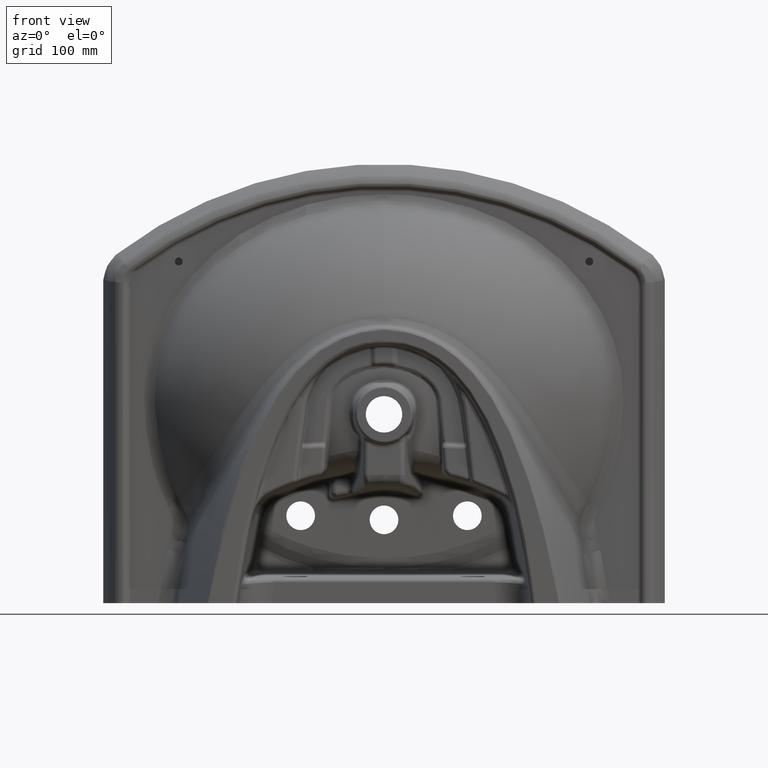
[diagram: clean part render]
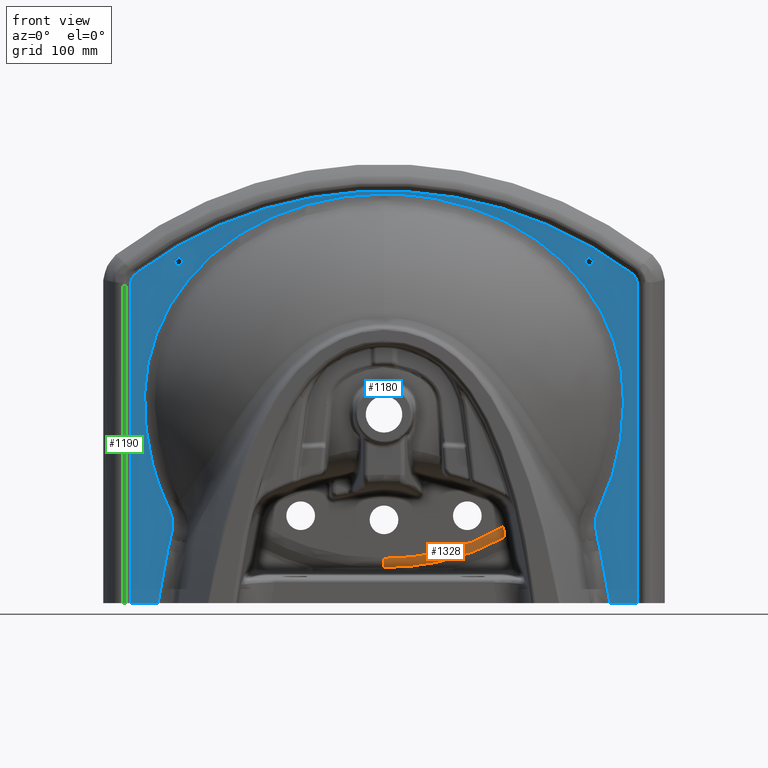
[diagram: same view with three faces highlighted in distinct colors, each labeled with its STEP entity id]
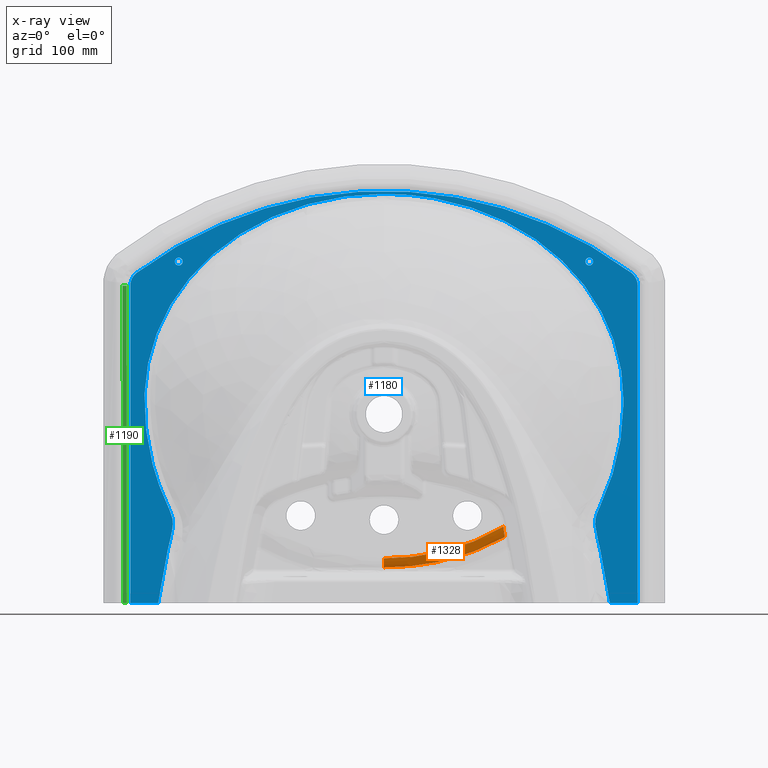
[diagram: x-ray of the same camera — body ghosted, the three highlighted faces saturated]
A machine part, front view with three faces highlighted in distinct colors.
The next image is the same camera in x-ray (body ghosted, the three faces saturated) — at least one of them is partly hidden behind the body in this view.
Their STEP definitions:

[orange] entity #1328 — the highlighted face is a freeform B-spline surface patch.
#326=CIRCLE('',#7452,25.);
#990=(
BOUNDED_SURFACE()
B_SPLINE_SURFACE(3,3,((#27801,#27802,#27803,#27804,#27805,#27806,#27807,
#27808,#27809),(#27810,#27811,#27812,#27813,#27814,#27815,#27816,#27817,
#27818),(#27819,#27820,#27821,#27822,#27823,#27824,#27825,#27826,#27827),
(#27828,#27829,#27830,#27831,#27832,#27833,#27834,#27835,#27836)),
 .UNSPECIFIED.,.F.,.F.,.F.)
B_SPLINE_SURFACE_WITH_KNOTS((4,4),(4,1,1,1,1,1,4),(0.,1.),(0.,0.103686715073332,
0.270455744592046,0.445080629346133,0.627123881743277,0.815776843584759,
1.),.UNSPECIFIED.)
GEOMETRIC_REPRESENTATION_ITEM()
RATIONAL_B_SPLINE_SURFACE(((1.015151605023,1.015151605023,1.015151605023,
1.015151605023,1.015151605023,1.015151605023,1.015151605023,1.015151605023,
1.015151605023),(0.9949494649924,0.9949494649924,0.9949494649924,0.9949494649924,
0.9949494649924,0.9949494649924,0.9949494649924,0.9949494649924,0.9949494649924),
(0.9949494649924,0.9949494649924,0.9949494649924,0.9949494649924,0.9949494649924,
0.9949494649924,0.9949494649924,0.9949494649924,0.9949494649924),(1.015151605023,
1.015151605023,1.015151605023,1.015151605023,1.015151605023,1.015151605023,
1.015151605023,1.015151605023,1.015151605023)))
REPRESENTATION_ITEM('')
SURFACE()
);
#1328=ADVANCED_FACE('',(#1858),#990,.T.);
#1858=FACE_OUTER_BOUND('',#2334,.T.);
#2334=EDGE_LOOP('',(#3798,#3799,#3800,#3801));
#3798=ORIENTED_EDGE('',*,*,#5844,.T.);
#3799=ORIENTED_EDGE('',*,*,#6184,.F.);
#3800=ORIENTED_EDGE('',*,*,#6185,.F.);
#3801=ORIENTED_EDGE('',*,*,#6186,.F.);
#5074=VERTEX_POINT('',#17924);
#5075=VERTEX_POINT('',#17934);
#5272=VERTEX_POINT('',#27069);
#5276=VERTEX_POINT('',#27796);
#5844=EDGE_CURVE('',#5075,#5074,#6822,.T.);
#6184=EDGE_CURVE('',#5272,#5074,#326,.T.);
#6185=EDGE_CURVE('',#5276,#5272,#7032,.T.);
#6186=EDGE_CURVE('',#5075,#5276,#7033,.T.);
#6822=B_SPLINE_CURVE_WITH_KNOTS('',3,(#17925,#17926,#17927,#17928,#17929,
#17930,#17931,#17932,#17933),.UNSPECIFIED.,.F.,.F.,(4,1,1,1,1,1,4),(0.,
0.1666666666667,0.3333333333333,0.5,0.6666666666667,0.8333333333333,1.),
 .UNSPECIFIED.);
#7032=B_SPLINE_CURVE_WITH_KNOTS('',3,(#27711,#27712,#27713,#27714,#27715,
#27716,#27717,#27718,#27719,#27720,#27721,#27722,#27723,#27724,#27725,#27726,
#27727,#27728,#27729,#27730,#27731,#27732,#27733,#27734,#27735,#27736,#27737,
#27738,#27739,#27740,#27741,#27742,#27743,#27744,#27745,#27746,#27747,#27748,
#27749,#27750,#27751,#27752,#27753,#27754,#27755,#27756,#27757,#27758,#27759,
#27760,#27761,#27762,#27763,#27764,#27765,#27766,#27767,#27768,#27769,#27770,
#27771,#27772,#27773,#27774,#27775,#27776,#27777,#27778,#27779,#27780,#27781,
#27782,#27783,#27784,#27785,#27786,#27787,#27788,#27789,#27790,#27791,#27792,
#27793,#27794,#27795),.UNSPECIFIED.,.F.,.F.,(4,2,2,2,1,1,2,2,2,2,1,1,1,
2,2,2,2,2,1,2,2,2,2,2,1,1,2,2,2,2,1,1,2,2,2,2,1,2,2,2,2,2,2,2,1,1,2,2,4),
(0.,0.125000000000015,0.187500000000023,0.218750000000027,0.234375000000029,
0.24218750000003,0.24609375000003,0.250000000000031,0.312500000000039,0.343750000000043,
0.359375000000045,0.367187500000047,0.371093750000047,0.373046875000047,
0.375000000000047,0.437500000000043,0.468750000000041,0.48437500000004,
0.492187500000039,0.496093750000039,0.500000000000039,0.562500000000032,
0.593750000000029,0.609375000000028,0.617187500000027,0.621093750000027,
0.623046875000027,0.625000000000026,0.687500000000023,0.718750000000022,
0.734375000000021,0.742187500000021,0.74609375000002,0.75000000000002,0.781250000000018,
0.796875000000017,0.804687500000016,0.808593750000016,0.812500000000015,
0.843750000000013,0.859375000000012,0.87500000000001,0.906250000000008,
0.921875000000006,0.929687500000005,0.933593750000005,0.935546875000005,
0.937500000000005,1.),.UNSPECIFIED.);
#7033=B_SPLINE_CURVE_WITH_KNOTS('',3,(#27797,#27798,#27799,#27800),
 .UNSPECIFIED.,.F.,.F.,(4,4),(0.,1.),.UNSPECIFIED.);
#7452=AXIS2_PLACEMENT_3D('',#27674,#8000,#8001);
#8000=DIRECTION('',(-0.999999999982946,-1.52880922051907E-007,5.83828686946527E-006));
#8001=DIRECTION('',(-2.60530900881261E-006,-0.883002808706644,-0.469367702137024));
#17924=CARTESIAN_POINT('',(0.0001063713125136,118.8876440453,-175.431765693));
#17925=CARTESIAN_POINT('',(145.2903909362,117.8783610399,-136.8884715038));
#17926=CARTESIAN_POINT('',(138.9234523488,117.9794130101,-140.7474905539));
#17927=CARTESIAN_POINT('',(125.587769086,118.1698382151,-148.0200206819));
#17928=CARTESIAN_POINT('',(103.5766519904,118.4180229777,-157.4976194798));
#17929=CARTESIAN_POINT('',(79.80238428341,118.620692403,-165.2373048068));
#17930=CARTESIAN_POINT('',(54.44624703276,118.7720653268,-171.0179895319));
#17931=CARTESIAN_POINT('',(27.78675664891,118.8660084796,-174.605537624));
#17932=CARTESIAN_POINT('',(9.380939439283,118.8876415586,-175.4316707317));
#17933=CARTESIAN_POINT('',(8.388394293031E-005,118.8876440194,-175.4317647058));
#17934=CARTESIAN_POINT('',(145.2903909362,117.8783610399,-136.8884715038));
#27069=CARTESIAN_POINT('',(4.123863431287E-005,121.8040067413,-186.5115264907));
#27674=CARTESIAN_POINT('',(0.0001063713595332,143.8790769589,-174.7773339372));
#27711=CARTESIAN_POINT('',(146.965454815132,121.149140308558,-149.486050100031));
#27712=CARTESIAN_POINT('',(142.41114148173,121.200798714778,-152.08556066915));
#27713=CARTESIAN_POINT('',(137.499917915369,121.251791678119,-154.700870820983));
#27714=CARTESIAN_POINT('',(129.577482409654,121.325843863535,-158.566856166605));
#27715=CARTESIAN_POINT('',(126.84409609042,121.350118981731,-159.845960862128));
#27716=CARTESIAN_POINT('',(122.602763650907,121.385713557062,-161.739765397421));
#27717=CARTESIAN_POINT('',(121.165449355866,121.397441832574,-162.366887237675));
#27718=CARTESIAN_POINT('',(118.973926291661,121.41480160068,-163.299998684215));
#27719=CARTESIAN_POINT('',(117.869277436814,121.42342329994,-163.764661200368));
#27720=CARTESIAN_POINT('',(116.56492012992,121.43337379732,-164.303154711399));
#27721=CARTESIAN_POINT('',(116.002562271446,121.437614426191,-164.533131130731));
#27722=CARTESIAN_POINT('',(115.626912619449,121.440436130012,-164.686265917211));
#27723=CARTESIAN_POINT('',(115.410306483853,121.442056027337,-164.774249410346));
#27724=CARTESIAN_POINT('',(112.687579934186,121.462348832233,-165.877128683263));
#27725=CARTESIAN_POINT('',(109.96578214865,121.48159031898,-166.934586315201));
#27726=CARTESIAN_POINT('',(105.638758127081,121.51028158571,-168.530021079252));
#27727=CARTESIAN_POINT('',(104.155701354155,121.519816213407,-169.063354721418));
#27728=CARTESIAN_POINT('',(101.869426485357,121.534020383702,-169.862976634506));
#27729=CARTESIAN_POINT('',(100.710867469064,121.541097960893,-170.26269121291));
#27730=CARTESIAN_POINT('',(99.3321025277728,121.549299709372,-170.728255835753));
#27731=CARTESIAN_POINT('',(98.6359270677042,121.553385106106,-170.960769501471));
#27732=CARTESIAN_POINT('',(98.3361089530103,121.555132498747,-171.060352433705));
#27733=CARTESIAN_POINT('',(98.1359062156746,121.556296631646,-171.126725520728));
#27734=CARTESIAN_POINT('',(97.9911666005761,121.557135728247,-171.174594813235));
#27735=CARTESIAN_POINT('',(96.1448430398187,121.567822223216,-171.78443593927));
#27736=CARTESIAN_POINT('',(93.7426667933762,121.581270548582,-172.560209874948));
#27737=CARTESIAN_POINT('',(89.2006900702945,121.604706240834,-173.929281692886));
#27738=CARTESIAN_POINT('',(87.5301682578214,121.613054280598,-174.41950652077));
#27739=CARTESIAN_POINT('',(84.7863280089107,121.62613594716,-175.193445207259));
#27740=CARTESIAN_POINT('',(83.8320350740525,121.630589231007,-175.457835697921));
#27741=CARTESIAN_POINT('',(82.3406466035019,121.637372635753,-175.862310701708));
#27742=CARTESIAN_POINT('',(81.579964934122,121.640790153908,-176.066518428577));
#27743=CARTESIAN_POINT('',(80.7967204067078,121.644239220842,-176.273338828962));
#27744=CARTESIAN_POINT('',(80.269534295969,121.646544777272,-176.411760321905));
#27745=CARTESIAN_POINT('',(79.9712942674019,121.647839243589,-176.489583888126));
#27746=CARTESIAN_POINT('',(75.9510445719576,121.665178230458,-177.533214655589));
#27747=CARTESIAN_POINT('',(72.4691693327439,121.678713520303,-178.358159910317));
#27748=CARTESIAN_POINT('',(67.715287966209,121.695832272921,-179.412280280008));
#27749=CARTESIAN_POINT('',(66.2087559311461,121.701006634213,-179.732995713471));
#27750=CARTESIAN_POINT('',(64.0676300344318,121.708082058289,-180.173699870227));
#27751=CARTESIAN_POINT('',(63.3736970576163,121.710326087244,-180.3138664761));
#27752=CARTESIAN_POINT('',(62.3626265558754,121.71353355114,-180.514657309326));
#27753=CARTESIAN_POINT('',(61.8645482911617,121.715097628757,-180.612687343734));
#27754=CARTESIAN_POINT('',(61.296540300454,121.716855752251,-180.723050515964));
#27755=CARTESIAN_POINT('',(61.055915311627,121.71759524429,-180.769504730351));
#27756=CARTESIAN_POINT('',(60.8961228098346,121.718085162161,-180.800288128162));
#27757=CARTESIAN_POINT('',(60.8491032713054,121.718229211808,-180.809340056164));
#27758=CARTESIAN_POINT('',(57.1584974749809,121.729491085919,-181.517293002159));
#27759=CARTESIAN_POINT('',(53.7249863500128,121.738734160868,-182.109971920482));
#27760=CARTESIAN_POINT('',(48.8000979074597,121.750553773829,-182.883151184625));
#27761=CARTESIAN_POINT('',(47.1960112162842,121.75415270033,-183.121544040906));
#27762=CARTESIAN_POINT('',(44.8469630605167,121.759097083152,-183.453003686808));
#27763=CARTESIAN_POINT('',(43.6867077085899,121.761455723144,-183.612198462214));
#27764=CARTESIAN_POINT('',(42.3581971907398,121.764020836033,-183.787089975661));
#27765=CARTESIAN_POINT('',(41.7942336802955,121.765081460898,-183.859784263313));
#27766=CARTESIAN_POINT('',(41.4194592496019,121.765780084363,-183.90775199895));
#27767=CARTESIAN_POINT('',(41.2773233501175,121.766043406513,-183.925854441452));
#27768=CARTESIAN_POINT('',(39.199800736797,121.769847550731,-184.187988976636));
#27769=CARTESIAN_POINT('',(37.4365872360728,121.772818465886,-184.394034800558));
#27770=CARTESIAN_POINT('',(34.918311671788,121.776803544806,-184.669271246472));
#27771=CARTESIAN_POINT('',(34.0999741517873,121.778053263887,-184.7553709158));
#27772=CARTESIAN_POINT('',(32.9042402038041,121.779827058405,-184.876814692997));
#27773=CARTESIAN_POINT('',(32.3143160579177,121.780688749857,-184.93560949207));
#27774=CARTESIAN_POINT('',(31.7363303439772,121.781515761931,-184.99165078824));
#27775=CARTESIAN_POINT('',(31.3536620612504,121.782059737949,-185.028414591209));
#27776=CARTESIAN_POINT('',(31.1937527948163,121.782285804827,-185.043659831213));
#27777=CARTESIAN_POINT('',(29.2247826706158,121.785049087684,-185.229333194367));
#27778=CARTESIAN_POINT('',(27.4990158231304,121.787331396092,-185.377810367629));
#27779=CARTESIAN_POINT('',(24.947527129373,121.790532339956,-185.577673765645));
#27780=CARTESIAN_POINT('',(24.1032238352209,121.791562242262,-185.640485417268));
#27781=CARTESIAN_POINT('',(22.4270818529422,121.793554366953,-185.758813499582));
#27782=CARTESIAN_POINT('',(21.5432213412494,121.794575295458,-185.817608364787));
#27783=CARTESIAN_POINT('',(19.2225783976055,121.797194106819,-185.963856224094));
#27784=CARTESIAN_POINT('',(17.5885414757034,121.798941735612,-186.055973200098));
#27785=CARTESIAN_POINT('',(15.0066784523742,121.801408512005,-186.180257873998));
#27786=CARTESIAN_POINT('',(14.1242570934083,121.802204790118,-186.219364844731));
#27787=CARTESIAN_POINT('',(12.7678853402831,121.803338713631,-186.273761328146));
#27788=CARTESIAN_POINT('',(12.0815146569881,121.803890532316,-186.299893008428));
#27789=CARTESIAN_POINT('',(11.2664182756765,121.804502902764,-186.328336419378));
#27790=CARTESIAN_POINT('',(10.9140197451858,121.804758074388,-186.340069196989));
#27791=CARTESIAN_POINT('',(10.678404762295,121.804926512195,-186.347787275886));
#27792=CARTESIAN_POINT('',(10.5253219331314,121.805034219528,-186.352701261906));
#27793=CARTESIAN_POINT('',(7.76796956029294,121.806954332745,-186.440063828035));
#27794=CARTESIAN_POINT('',(4.28868087884158,121.808948170154,-186.520807090704));
#27795=CARTESIAN_POINT('',(4.40772977219055E-005,121.808978853733,-186.520889004576));
#27796=CARTESIAN_POINT('',(146.965447437,121.149167594,-149.4860366314));
#27797=CARTESIAN_POINT('',(145.290468146476,117.878399194877,-136.88893551541));
#27798=CARTESIAN_POINT('',(146.012470543309,117.992474625526,-141.234276527531));
#27799=CARTESIAN_POINT('',(146.584903029324,119.123127366398,-145.589213737403));
#27800=CARTESIAN_POINT('',(146.965398054648,121.149021736063,-149.485640120729));
#27801=CARTESIAN_POINT('',(151.3893703728,121.0807701286,-146.8666361241));
#27802=CARTESIAN_POINT('',(146.6835343646,121.1554585551,-149.7188720608));
#27803=CARTESIAN_POINT('',(134.1673499934,121.3395974316,-156.7508520497));
#27804=CARTESIAN_POINT('',(112.7002725852,121.5967419075,-166.5708034006));
#27805=CARTESIAN_POINT('',(86.48129237342,121.8323464081,-175.5681762811));
#27806=CARTESIAN_POINT('',(58.41853158433,122.0071195749,-182.2424942477));
#27807=CARTESIAN_POINT('',(29.37089577574,122.1119365428,-186.2452927614));
#27808=CARTESIAN_POINT('',(9.709535968201,122.1346688456,-187.1134043816));
#27809=CARTESIAN_POINT('',(4.576458567586E-005,122.1346712152,-187.1134948717));
#27810=CARTESIAN_POINT('',(149.5027217542,119.0596543656,-143.806874566));
#27811=CARTESIAN_POINT('',(144.8653978721,119.133255284,-146.6175802439));
#27812=CARTESIAN_POINT('',(132.5279215747,119.3147689917,-153.5493090832));
#27813=CARTESIAN_POINT('',(111.3533337939,119.5684240117,-163.2360034863));
#27814=CARTESIAN_POINT('',(85.4702891264,119.801022412,-172.11857803));
#27815=CARTESIAN_POINT('',(57.75073655017,119.9736683381,-178.7116599517));
#27816=CARTESIAN_POINT('',(29.04291419519,120.0772685872,-182.667993849));
#27817=CARTESIAN_POINT('',(9.602326142239,120.0997504963,-183.5265433188));
#27818=CARTESIAN_POINT('',(2.388072555688E-005,120.0997528615,-183.5266336431));
#27819=CARTESIAN_POINT('',(147.4284280658,117.970502825,-140.4131225355));
#27820=CARTESIAN_POINT('',(142.8664304893,118.0429080724,-143.1781673771));
#27821=CARTESIAN_POINT('',(130.725436476,118.2215355135,-149.9996741408));
#27822=CARTESIAN_POINT('',(109.8724291857,118.471354018,-159.539857931));
#27823=CARTESIAN_POINT('',(84.35873203327,118.7006473329,-168.2962163561));
#27824=CARTESIAN_POINT('',(57.01652297651,118.8709544441,-174.7999825389));
#27825=CARTESIAN_POINT('',(28.68231174079,118.9732169602,-178.705230474));
#27826=CARTESIAN_POINT('',(9.484453283915,118.9954235716,-179.553266747));
#27827=CARTESIAN_POINT('',(-1.796916694062E-007,118.995425932,-179.5533568888));
#27828=CARTESIAN_POINT('',(145.2903284603,117.8783398595,-136.8879932781));
#27829=CARTESIAN_POINT('',(140.8059742501,117.9495126565,-139.605972742));
#27830=CARTESIAN_POINT('',(128.8675063767,118.1251650486,-146.3138669648));
#27831=CARTESIAN_POINT('',(108.3459714925,118.3710290252,-155.70303343));
#27832=CARTESIAN_POINT('',(83.21298309927,118.5969155893,-164.3292932898));
#27833=CARTESIAN_POINT('',(56.25972476565,118.7648119429,-170.7409963539));
#27834=CARTESIAN_POINT('',(28.31061704307,118.8656955769,-174.5935869066));
#27835=CARTESIAN_POINT('',(9.362954619917,118.8876184223,-175.4307865936));
#27836=CARTESIAN_POINT('',(-2.498021479043E-005,118.8876207778,-175.4308765474));

[blue] entity #1180 — the highlighted planar face has unit normal (0, -1, 0).
#231=FACE_BOUND('',#2177,.T.);
#232=FACE_BOUND('',#2178,.T.);
#233=FACE_BOUND('',#2179,.T.);
#283=CIRCLE('',#7361,4.75);
#284=CIRCLE('',#7363,504.9817006471);
#285=CIRCLE('',#7364,4.75);
#286=CIRCLE('',#7365,4.75);
#287=CIRCLE('',#7366,4.75);
#407=PLANE('',#7367);
#635=LINE('',#16349,#764);
#636=LINE('',#16496,#765);
#764=VECTOR('',#7782,1.);
#765=VECTOR('',#7783,1.);
#1180=ADVANCED_FACE('',(#231,#232,#233),#407,.T.);
#2177=EDGE_LOOP('',(#3047,#3048,#3049,#3050,#3051,#3052,#3053,#3054,#3055,
#3056,#3057,#3058,#3059,#3060,#3061,#3062,#3063));
#2178=EDGE_LOOP('',(#3064,#3065));
#2179=EDGE_LOOP('',(#3066,#3067));
#3047=ORIENTED_EDGE('',*,*,#5730,.T.);
#3048=ORIENTED_EDGE('',*,*,#5731,.T.);
#3049=ORIENTED_EDGE('',*,*,#5732,.T.);
#3050=ORIENTED_EDGE('',*,*,#5733,.T.);
#3051=ORIENTED_EDGE('',*,*,#5734,.F.);
#3052=ORIENTED_EDGE('',*,*,#5735,.F.);
#3053=ORIENTED_EDGE('',*,*,#5736,.F.);
#3054=ORIENTED_EDGE('',*,*,#5737,.F.);
#3055=ORIENTED_EDGE('',*,*,#5738,.F.);
#3056=ORIENTED_EDGE('',*,*,#5739,.F.);
#3057=ORIENTED_EDGE('',*,*,#5740,.F.);
#3058=ORIENTED_EDGE('',*,*,#5741,.F.);
#3059=ORIENTED_EDGE('',*,*,#5742,.F.);
#3060=ORIENTED_EDGE('',*,*,#5743,.F.);
#3061=ORIENTED_EDGE('',*,*,#5744,.F.);
#3062=ORIENTED_EDGE('',*,*,#5745,.F.);
#3063=ORIENTED_EDGE('',*,*,#5746,.T.);
#3064=ORIENTED_EDGE('',*,*,#5747,.F.);
#3065=ORIENTED_EDGE('',*,*,#5729,.F.);
#3066=ORIENTED_EDGE('',*,*,#5748,.F.);
#3067=ORIENTED_EDGE('',*,*,#5749,.F.);
#4976=VERTEX_POINT('',#16316);
#4977=VERTEX_POINT('',#16318);
#4978=VERTEX_POINT('',#16329);
#4979=VERTEX_POINT('',#16330);
#4980=VERTEX_POINT('',#16332);
#4981=VERTEX_POINT('',#16341);
#4982=VERTEX_POINT('',#16348);
#4983=VERTEX_POINT('',#16350);
#4984=VERTEX_POINT('',#16355);
#4985=VERTEX_POINT('',#16362);
#4986=VERTEX_POINT('',#16371);
#4987=VERTEX_POINT('',#16376);
#4988=VERTEX_POINT('',#16445);
#4989=VERTEX_POINT('',#16469);
#4990=VERTEX_POINT('',#16474);
#4991=VERTEX_POINT('',#16483);
#4992=VERTEX_POINT('',#16490);
#4993=VERTEX_POINT('',#16495);
#4994=VERTEX_POINT('',#16497);
#4995=VERTEX_POINT('',#16506);
#4996=VERTEX_POINT('',#16507);
#5729=EDGE_CURVE('',#4977,#4976,#283,.T.);
#5730=EDGE_CURVE('',#4978,#4979,#6750,.T.);
#5731=EDGE_CURVE('',#4979,#4980,#284,.T.);
#5732=EDGE_CURVE('',#4980,#4981,#6751,.T.);
#5733=EDGE_CURVE('',#4981,#4982,#6752,.T.);
#5734=EDGE_CURVE('',#4983,#4982,#635,.T.);
#5735=EDGE_CURVE('',#4984,#4983,#6753,.T.);
#5736=EDGE_CURVE('',#4985,#4984,#6754,.T.);
#5737=EDGE_CURVE('',#4986,#4985,#6755,.T.);
#5738=EDGE_CURVE('',#4987,#4986,#6756,.T.);
#5739=EDGE_CURVE('',#4988,#4987,#6757,.T.);
#5740=EDGE_CURVE('',#4989,#4988,#6758,.T.);
#5741=EDGE_CURVE('',#4990,#4989,#6759,.T.);
#5742=EDGE_CURVE('',#4991,#4990,#6760,.T.);
#5743=EDGE_CURVE('',#4992,#4991,#6761,.T.);
#5744=EDGE_CURVE('',#4993,#4992,#6762,.T.);
#5745=EDGE_CURVE('',#4994,#4993,#636,.T.);
#5746=EDGE_CURVE('',#4994,#4978,#6763,.T.);
#5747=EDGE_CURVE('',#4976,#4977,#285,.T.);
#5748=EDGE_CURVE('',#4995,#4996,#286,.T.);
#5749=EDGE_CURVE('',#4996,#4995,#287,.T.);
#6750=B_SPLINE_CURVE_WITH_KNOTS('',3,(#16321,#16322,#16323,#16324,#16325,
#16326,#16327,#16328),.UNSPECIFIED.,.F.,.F.,(4,1,1,1,1,4),(0.,0.2,0.4,0.6,
0.8,1.),.UNSPECIFIED.);
#6751=B_SPLINE_CURVE_WITH_KNOTS('',3,(#16333,#16334,#16335,#16336,#16337,
#16338,#16339,#16340),.UNSPECIFIED.,.F.,.F.,(4,1,1,1,1,4),(0.,0.2,0.4,0.6,
0.8,1.),.UNSPECIFIED.);
#6752=B_SPLINE_CURVE_WITH_KNOTS('',3,(#16342,#16343,#16344,#16345,#16346,
#16347),.UNSPECIFIED.,.F.,.F.,(4,1,1,4),(0.,0.3333333333333,0.6666666666667,
1.),.UNSPECIFIED.);
#6753=B_SPLINE_CURVE_WITH_KNOTS('',3,(#16351,#16352,#16353,#16354),
 .UNSPECIFIED.,.F.,.F.,(4,4),(0.,1.),.UNSPECIFIED.);
#6754=B_SPLINE_CURVE_WITH_KNOTS('',3,(#16356,#16357,#16358,#16359,#16360,
#16361),.UNSPECIFIED.,.F.,.F.,(4,1,1,4),(0.,0.3333333333333,0.6666666666667,
1.),.UNSPECIFIED.);
#6755=B_SPLINE_CURVE_WITH_KNOTS('',3,(#16363,#16364,#16365,#16366,#16367,
#16368,#16369,#16370),.UNSPECIFIED.,.F.,.F.,(4,1,1,1,1,4),(0.,0.25,0.375,
0.5,0.75,1.),.UNSPECIFIED.);
#6756=B_SPLINE_CURVE_WITH_KNOTS('',3,(#16372,#16373,#16374,#16375),
 .UNSPECIFIED.,.F.,.F.,(4,4),(0.,1.),.UNSPECIFIED.);
#6757=B_SPLINE_CURVE_WITH_KNOTS('',3,(#16377,#16378,#16379,#16380,#16381,
#16382,#16383,#16384,#16385,#16386,#16387,#16388,#16389,#16390,#16391,#16392,
#16393,#16394,#16395,#16396,#16397,#16398,#16399,#16400,#16401,#16402,#16403,
#16404,#16405,#16406,#16407,#16408,#16409,#16410,#16411,#16412,#16413,#16414,
#16415,#16416,#16417,#16418,#16419,#16420,#16421,#16422,#16423,#16424,#16425,
#16426,#16427,#16428,#16429,#16430,#16431,#16432,#16433,#16434,#16435,#16436,
#16437,#16438,#16439,#16440,#16441,#16442,#16443,#16444),.UNSPECIFIED.,
 .F.,.F.,(4,1,1,1,1,1,1,1,1,1,1,1,1,1,1,1,1,1,1,1,1,1,1,1,1,1,1,1,1,1,1,
1,1,1,1,1,1,1,1,1,1,1,1,1,1,1,1,1,1,1,1,1,1,1,1,1,1,1,1,1,1,1,1,1,1,4),
(0.,0.01865068622153,0.03717516774878,0.0556398112197,0.07398880938672,
0.09222000964436,0.1103125504805,0.1282493150287,0.1460400762138,0.1636879135775,
0.1812039953505,0.198583206482,0.2158069070234,0.2328513650007,0.2497097001378,
0.2663806832777,0.2828654921934,0.2991707780201,0.3152957636329,0.3312302206506,
0.3469580488075,0.3624971108673,0.3778596227437,0.3930433547888,0.4080580451863,
0.4228996115136,0.4375346639606,0.4519186600701,0.4661713652616,0.4803505639318,
0.4944027548033,0.5082876691076,0.5220918026172,0.535829229627,0.5494007525637,
0.5628255923447,0.5761452616428,0.5893733572095,0.6025307928021,0.6155874717215,
0.6285335437728,0.6414452264493,0.6543212798964,0.6671204648557,0.6798803034778,
0.6926703490658,0.7054850867941,0.7182556009044,0.7309816650824,0.7439731149907,
0.7577773636157,0.7731360462941,0.7898568208402,0.8064663079321,0.8227672361554,
0.839060096895,0.8552432479879,0.871431407395,0.8876000630152,0.9037324794466,
0.9198306080681,0.9358994579324,0.9519607428175,0.967987506183,0.9839756107842,
1.),.UNSPECIFIED.);
#6758=B_SPLINE_CURVE_WITH_KNOTS('',3,(#16446,#16447,#16448,#16449,#16450,
#16451,#16452,#16453,#16454,#16455,#16456,#16457,#16458,#16459,#16460,#16461,
#16462,#16463,#16464,#16465,#16466,#16467,#16468),.UNSPECIFIED.,.F.,.F.,
(4,1,1,1,1,1,1,1,1,1,1,1,1,1,1,1,1,1,1,1,4),(0.,0.05,0.1,0.15,0.2,0.25,
0.3,0.35,0.4,0.45,0.5,0.55,0.6,0.65,0.7,0.75,0.8,0.85,0.9,0.95,1.),
 .UNSPECIFIED.);
#6759=B_SPLINE_CURVE_WITH_KNOTS('',3,(#16470,#16471,#16472,#16473),
 .UNSPECIFIED.,.F.,.F.,(4,4),(0.,1.),.UNSPECIFIED.);
#6760=B_SPLINE_CURVE_WITH_KNOTS('',3,(#16475,#16476,#16477,#16478,#16479,
#16480,#16481,#16482),.UNSPECIFIED.,.F.,.F.,(4,1,1,1,1,4),(0.,0.25,0.5,
0.625,0.75,1.),.UNSPECIFIED.);
#6761=B_SPLINE_CURVE_WITH_KNOTS('',3,(#16484,#16485,#16486,#16487,#16488,
#16489),.UNSPECIFIED.,.F.,.F.,(4,1,1,4),(0.,0.3333333333333,0.6666666666667,
1.),.UNSPECIFIED.);
#6762=B_SPLINE_CURVE_WITH_KNOTS('',3,(#16491,#16492,#16493,#16494),
 .UNSPECIFIED.,.F.,.F.,(4,4),(0.,1.),.UNSPECIFIED.);
#6763=B_SPLINE_CURVE_WITH_KNOTS('',3,(#16498,#16499,#16500,#16501,#16502,
#16503),.UNSPECIFIED.,.F.,.F.,(4,1,1,4),(0.,0.3333333333333,0.6666666666667,
1.),.UNSPECIFIED.);
#7361=AXIS2_PLACEMENT_3D('',#16319,#7776,#7777);
#7363=AXIS2_PLACEMENT_3D('',#16331,#7780,#7781);
#7364=AXIS2_PLACEMENT_3D('',#16504,#7784,#7785);
#7365=AXIS2_PLACEMENT_3D('',#16505,#7786,#7787);
#7366=AXIS2_PLACEMENT_3D('',#16508,#7788,#7789);
#7367=AXIS2_PLACEMENT_3D('',#16509,#7790,#7791);
#7776=DIRECTION('',(0.,-1.,0.));
#7777=DIRECTION('',(-0.999999999999995,0.,0.));
#7780=DIRECTION('',(0.,-1.,0.));
#7781=DIRECTION('',(0.596131938660887,0.,0.802886487436682));
#7782=DIRECTION('',(-1.,0.,4.282281746451E-011));
#7783=DIRECTION('',(-1.,0.,-4.191636480791E-011));
#7784=DIRECTION('',(0.,-1.,0.));
#7785=DIRECTION('',(1.,0.,0.));
#7786=DIRECTION('',(0.,-1.,0.));
#7787=DIRECTION('',(0.999999999999995,0.,0.));
#7788=DIRECTION('',(0.,-1.,0.));
#7789=DIRECTION('',(-1.,0.,0.));
#7790=DIRECTION('',(0.,-1.,0.));
#7791=DIRECTION('',(1.,0.,0.));
#16316=CARTESIAN_POINT('',(-245.25,105.,186.));
#16318=CARTESIAN_POINT('',(-254.75,105.,186.));
#16319=CARTESIAN_POINT('',(-250.,105.,186.));
#16321=CARTESIAN_POINT('',(309.0771565585,105.,156.5291467193));
#16322=CARTESIAN_POINT('',(309.0723264491,105.,157.810337203));
#16323=CARTESIAN_POINT('',(308.8294668185,105.,160.2975573306));
#16324=CARTESIAN_POINT('',(307.8049055535,105.,163.8355205014));
#16325=CARTESIAN_POINT('',(306.1621842091,105.,167.0859694221));
#16326=CARTESIAN_POINT('',(303.9222776408,105.,170.0083938682));
#16327=CARTESIAN_POINT('',(302.0642774672,105.,171.6790870103));
#16328=CARTESIAN_POINT('',(301.0358434099,105.,172.442878618));
#16329=CARTESIAN_POINT('',(309.0771565585,105.,156.5291467193));
#16330=CARTESIAN_POINT('',(301.0358434099,105.,172.442878618));
#16331=CARTESIAN_POINT('',(0.,105.,-233.));
#16332=CARTESIAN_POINT('',(-301.0357166618,105.,172.4429864757));
#16333=CARTESIAN_POINT('',(-301.0358279065,105.,172.4428898198));
#16334=CARTESIAN_POINT('',(-302.0642669653,105.,171.6790974631));
#16335=CARTESIAN_POINT('',(-303.9222867289,105.,170.008383251));
#16336=CARTESIAN_POINT('',(-306.1621790981,105.,167.0859746213));
#16337=CARTESIAN_POINT('',(-307.8049119855,105.,163.8355160213));
#16338=CARTESIAN_POINT('',(-308.82947877,105.,160.2974806106));
#16339=CARTESIAN_POINT('',(-309.0723220999,105.,157.8103717341));
#16340=CARTESIAN_POINT('',(-309.0771558922,105.,156.5292074865));
#16341=CARTESIAN_POINT('',(-309.0771558922,105.,156.5292074865));
#16342=CARTESIAN_POINT('',(-309.0771558922,105.,156.5292074865));
#16343=CARTESIAN_POINT('',(-309.2475120566,105.,109.8511021462));
#16344=CARTESIAN_POINT('',(-309.5984766833,105.,18.97600793647));
#16345=CARTESIAN_POINT('',(-309.7148916906,105.,-110.3859361039));
#16346=CARTESIAN_POINT('',(-309.3214274464,105.,-191.0104127191));
#16347=CARTESIAN_POINT('',(-308.9803641722,105.,-230.));
#16348=CARTESIAN_POINT('',(-308.9803641722,105.,-229.999999999976));
#16349=CARTESIAN_POINT('',(-275.1798699062,105.,-230.0000000014));
#16350=CARTESIAN_POINT('',(-275.1798699062,105.,-230.0000000014));
#16351=CARTESIAN_POINT('',(-263.4177660021,105.,-165.4675300907));
#16352=CARTESIAN_POINT('',(-268.1286058758,105.,-186.8360180247));
#16353=CARTESIAN_POINT('',(-272.0269073561,105.,-208.367052422));
#16354=CARTESIAN_POINT('',(-275.1798699062,105.,-230.0000000014));
#16355=CARTESIAN_POINT('',(-263.4177660021,105.,-165.4675300907));
#16356=CARTESIAN_POINT('',(-260.3167590263,105.,-151.983301453));
#16357=CARTESIAN_POINT('',(-260.6688520216,105.,-153.449771447));
#16358=CARTESIAN_POINT('',(-261.3679042485,105.,-156.4039212898));
#16359=CARTESIAN_POINT('',(-262.4013649705,105.,-160.8986472836));
#16360=CARTESIAN_POINT('',(-263.0805455072,105.,-163.9375221881));
#16361=CARTESIAN_POINT('',(-263.4177660021,105.,-165.4675300907));
#16362=CARTESIAN_POINT('',(-260.3167590263,105.,-151.983301453));
#16363=CARTESIAN_POINT('',(-261.5420116375,105.,-115.5458308625));
#16364=CARTESIAN_POINT('',(-260.1272564004,105.,-118.6805349375));
#16365=CARTESIAN_POINT('',(-258.296986103,105.,-123.3531853544));
#16366=CARTESIAN_POINT('',(-257.1707675667,105.,-128.8533600327));
#16367=CARTESIAN_POINT('',(-256.9155541685,105.,-133.9604729265));
#16368=CARTESIAN_POINT('',(-257.936470532,105.,-141.6472841258));
#16369=CARTESIAN_POINT('',(-259.4860557091,105.,-148.5206298502));
#16370=CARTESIAN_POINT('',(-260.3167590263,105.,-151.983301453));
#16371=CARTESIAN_POINT('',(-261.5420116375,105.,-115.5458308625));
#16372=CARTESIAN_POINT('',(-262.6991872203,105.,-113.0598787769));
#16373=CARTESIAN_POINT('',(-262.3015909476,105.,-113.8911652602));
#16374=CARTESIAN_POINT('',(-261.9147399887,105.,-114.7201943717));
#16375=CARTESIAN_POINT('',(-261.5420116375,105.,-115.5458308625));
#16376=CARTESIAN_POINT('',(-262.6991872203,105.,-113.0598787769));
#16377=CARTESIAN_POINT('',(9.83775272686E-006,105.,268.4267567415));
#16378=CARTESIAN_POINT('',(-3.481757477572,105.,268.4267393521));
#16379=CARTESIAN_POINT('',(-10.42184572608,105.,268.3244611643));
#16380=CARTESIAN_POINT('',(-20.8005657517,105.,267.8655898576));
#16381=CARTESIAN_POINT('',(-31.10598718598,105.,267.1058342416));
#16382=CARTESIAN_POINT('',(-41.33123254252,105.,266.0485933015));
#16383=CARTESIAN_POINT('',(-51.45334517342,105.,264.6994673301));
#16384=CARTESIAN_POINT('',(-61.45691757649,105.,263.0640664665));
#16385=CARTESIAN_POINT('',(-71.32868337174,105.,261.148195875));
#16386=CARTESIAN_POINT('',(-81.05972416377,105.,258.9575701768));
#16387=CARTESIAN_POINT('',(-90.64650607094,105.,256.4968998356));
#16388=CARTESIAN_POINT('',(-100.0828852752,105.,253.7715231945));
#16389=CARTESIAN_POINT('',(-109.3590573085,105.,250.788340099));
#16390=CARTESIAN_POINT('',(-118.4600307797,105.,247.5563084027));
#16391=CARTESIAN_POINT('',(-127.3703122186,105.,244.085528952));
#16392=CARTESIAN_POINT('',(-136.0780920786,105.,240.3859590265));
#16393=CARTESIAN_POINT('',(-144.5761857645,105.,236.4662767854));
#16394=CARTESIAN_POINT('',(-152.8600233348,105.,232.3342490433));
#16395=CARTESIAN_POINT('',(-160.9251028976,105.,227.9978001371));
#16396=CARTESIAN_POINT('',(-168.7656331531,105.,223.4660065111));
#16397=CARTESIAN_POINT('',(-176.3725498163,105.,218.7502863045));
#16398=CARTESIAN_POINT('',(-183.7402865519,105.,213.860816031));
#16399=CARTESIAN_POINT('',(-190.8670740308,105.,208.8055784366));
#16400=CARTESIAN_POINT('',(-197.7532997607,105.,203.5906467168));
#16401=CARTESIAN_POINT('',(-204.3979396909,105.,198.2231225532));
#16402=CARTESIAN_POINT('',(-210.7983012293,105.,192.7118751455));
#16403=CARTESIAN_POINT('',(-216.9475378898,105.,187.0695518057));
#16404=CARTESIAN_POINT('',(-222.8323366645,105.,181.3166096366));
#16405=CARTESIAN_POINT('',(-228.4572984871,105.,175.4583550523));
#16406=CARTESIAN_POINT('',(-233.838078848,105.,169.4863393292));
#16407=CARTESIAN_POINT('',(-238.9861866317,105.,163.3911618396));
#16408=CARTESIAN_POINT('',(-243.8938825157,105.,157.1875150287));
#16409=CARTESIAN_POINT('',(-248.5594560818,105.,150.8852738507));
#16410=CARTESIAN_POINT('',(-252.9878892616,105.,144.4838081957));
#16411=CARTESIAN_POINT('',(-257.1766853828,105.,137.9904986459));
#16412=CARTESIAN_POINT('',(-261.1174669955,105.,131.4241208634));
#16413=CARTESIAN_POINT('',(-264.8063629926,105.,124.7997021168));
#16414=CARTESIAN_POINT('',(-268.2490331979,105.,118.114255111));
#16415=CARTESIAN_POINT('',(-271.4515116229,105.,111.3650749104));
#16416=CARTESIAN_POINT('',(-274.4141475323,105.,104.5595576876));
#16417=CARTESIAN_POINT('',(-277.1357229232,105.,97.7093076948));
#16418=CARTESIAN_POINT('',(-279.6195141571,105.,90.81729448147));
#16419=CARTESIAN_POINT('',(-281.870479422,105.,83.88004057451));
#16420=CARTESIAN_POINT('',(-283.8901279801,105.,76.89889197801));
#16421=CARTESIAN_POINT('',(-285.6777477981,105.,69.88202141171));
#16422=CARTESIAN_POINT('',(-287.2362648256,105.,62.82650933461));
#16423=CARTESIAN_POINT('',(-288.5686702789,105.,55.72044856798));
#16424=CARTESIAN_POINT('',(-289.672153112,105.,48.5714645797));
#16425=CARTESIAN_POINT('',(-290.5435366903,105.,41.4010056272));
#16426=CARTESIAN_POINT('',(-291.1865499798,105.,34.16732027484));
#16427=CARTESIAN_POINT('',(-291.6016279808,105.,26.72435017908));
#16428=CARTESIAN_POINT('',(-291.7910040717,105.,18.79328428987));
#16429=CARTESIAN_POINT('',(-291.7238057178,105.,10.18200393838));
#16430=CARTESIAN_POINT('',(-291.3940204062,105.,1.091111111651));
#16431=CARTESIAN_POINT('',(-290.8012364295,105.,-8.184977961995));
#16432=CARTESIAN_POINT('',(-289.9364844214,105.,-17.36775428978));
#16433=CARTESIAN_POINT('',(-288.8065785644,105.,-26.44428441477));
#16434=CARTESIAN_POINT('',(-287.4041342776,105.,-35.46667354474));
#16435=CARTESIAN_POINT('',(-285.7288221152,105.,-44.42363604617));
#16436=CARTESIAN_POINT('',(-283.7797851752,105.,-53.31971973258));
#16437=CARTESIAN_POINT('',(-281.5607591827,105.,-62.1398268955));
#16438=CARTESIAN_POINT('',(-279.0756241088,105.,-70.87432731323));
#16439=CARTESIAN_POINT('',(-276.3262926881,105.,-79.52035622152));
#16440=CARTESIAN_POINT('',(-273.315719467,105.,-88.07013474163));
#16441=CARTESIAN_POINT('',(-270.0472346183,105.,-96.51415467085));
#16442=CARTESIAN_POINT('',(-266.522392682563,105.,-104.850979827987));
#16443=CARTESIAN_POINT('',(-264.00276726066,105.,-110.334387567986));
#16444=CARTESIAN_POINT('',(-262.699187220359,105.,-113.059878776886));
#16445=CARTESIAN_POINT('',(5.471593546975E-006,105.,268.4267565852));
#16446=CARTESIAN_POINT('',(262.6975660829,105.,-113.0632068582));
#16447=CARTESIAN_POINT('',(266.9374802407,105.,-104.1987811441));
#16448=CARTESIAN_POINT('',(274.4960002766,105.,-86.14255664445));
#16449=CARTESIAN_POINT('',(283.1294081142,105.,-57.82306673515));
#16450=CARTESIAN_POINT('',(288.9107868518,105.,-29.04243425247));
#16451=CARTESIAN_POINT('',(291.7832758699,105.,1.407597511446));
#16452=CARTESIAN_POINT('',(291.9422109817,105.,27.59790094136));
#16453=CARTESIAN_POINT('',(289.7201300409,105.,50.91168419715));
#16454=CARTESIAN_POINT('',(284.8996526114,105.,74.64659121652));
#16455=CARTESIAN_POINT('',(277.5690067404,105.,97.66034420591));
#16456=CARTESIAN_POINT('',(267.7670432927,105.,119.9578901409));
#16457=CARTESIAN_POINT('',(255.4633164122,105.,141.4400411416));
#16458=CARTESIAN_POINT('',(240.489361272,105.,162.1836736562));
#16459=CARTESIAN_POINT('',(223.0780619156,105.,181.6567524461));
#16460=CARTESIAN_POINT('',(202.9492647328,105.,199.9746512494));
#16461=CARTESIAN_POINT('',(180.2783658986,105.,216.7228032408));
#16462=CARTESIAN_POINT('',(155.0793049894,105.,231.6782233638));
#16463=CARTESIAN_POINT('',(127.5823002052,105.,244.4945955134));
#16464=CARTESIAN_POINT('',(97.90696115305,105.,254.9139193231));
#16465=CARTESIAN_POINT('',(66.60291307209,105.,262.5903181826));
#16466=CARTESIAN_POINT('',(33.71556303206,105.,267.348115629));
#16467=CARTESIAN_POINT('',(11.34652911395,105.,268.4266978195));
#16468=CARTESIAN_POINT('',(5.471593546975E-006,105.,268.4267565852));
#16469=CARTESIAN_POINT('',(262.6975660829,105.,-113.0632068582));
#16470=CARTESIAN_POINT('',(261.5411382385,105.,-115.547452151));
#16471=CARTESIAN_POINT('',(261.9136330783,105.,-114.7223828694));
#16472=CARTESIAN_POINT('',(262.300228495,105.,-113.8939265495));
#16473=CARTESIAN_POINT('',(262.6975660829,105.,-113.0632068582));
#16474=CARTESIAN_POINT('',(261.5411382385,105.,-115.547452151));
#16475=CARTESIAN_POINT('',(260.3158065587,105.,-151.9844817129));
#16476=CARTESIAN_POINT('',(259.4848080949,105.,-148.5218904376));
#16477=CARTESIAN_POINT('',(257.9348840092,105.,-141.6485699586));
#16478=CARTESIAN_POINT('',(256.9124853902,105.,-133.9618605621));
#16479=CARTESIAN_POINT('',(257.1679573224,105.,-128.8542707893));
#16480=CARTESIAN_POINT('',(258.2954925354,105.,-123.354178233));
#16481=CARTESIAN_POINT('',(260.1263660111,105.,-118.6820741381));
#16482=CARTESIAN_POINT('',(261.5411382385,105.,-115.547452151));
#16483=CARTESIAN_POINT('',(260.3158065587,105.,-151.9844817129));
#16484=CARTESIAN_POINT('',(263.4188614906,105.,-165.4726213275));
#16485=CARTESIAN_POINT('',(263.0814340612,105.,-163.9421541253));
#16486=CARTESIAN_POINT('',(262.4018096735,105.,-160.9023808382));
#16487=CARTESIAN_POINT('',(261.367646947,105.,-156.4063726769));
#16488=CARTESIAN_POINT('',(260.6681262935,105.,-153.4513740246));
#16489=CARTESIAN_POINT('',(260.3158065587,105.,-151.9844817129));
#16490=CARTESIAN_POINT('',(263.4188614906,105.,-165.4726213275));
#16491=CARTESIAN_POINT('',(275.179871209,105.,-230.0000000014));
#16492=CARTESIAN_POINT('',(272.0271352493,105.,-208.368776603));
#16493=CARTESIAN_POINT('',(268.130729166,105.,-186.8391190465));
#16494=CARTESIAN_POINT('',(263.4188614906,105.,-165.4726213275));
#16495=CARTESIAN_POINT('',(275.179871209,105.,-230.000000001404));
#16496=CARTESIAN_POINT('',(308.9803641642,105.,-230.));
#16497=CARTESIAN_POINT('',(308.9803641642,105.,-230.));
#16498=CARTESIAN_POINT('',(308.9803641642,105.,-230.));
#16499=CARTESIAN_POINT('',(309.321430682,105.,-191.0104454535));
#16500=CARTESIAN_POINT('',(309.7148902179,105.,-110.3860199398));
#16501=CARTESIAN_POINT('',(309.5984765658,105.,18.97595963156));
#16502=CARTESIAN_POINT('',(309.2475138765,105.,109.8510134589));
#16503=CARTESIAN_POINT('',(309.0771565585,105.,156.5291467193));
#16504=CARTESIAN_POINT('',(-250.,105.,186.));
#16505=CARTESIAN_POINT('',(250.,105.,186.));
#16506=CARTESIAN_POINT('',(254.75,105.,186.));
#16507=CARTESIAN_POINT('',(245.25,105.,186.));
#16508=CARTESIAN_POINT('',(250.,105.,186.));
#16509=CARTESIAN_POINT('',(0.,105.,0.));

[green] entity #1190 — the highlighted face is a freeform B-spline surface patch.
#473=(
BOUNDED_CURVE()
B_SPLINE_CURVE(3,(#16783,#16784,#16785,#16786),.UNSPECIFIED.,.F.,.F.)
B_SPLINE_CURVE_WITH_KNOTS((4,4),(0.,1.),.UNSPECIFIED.)
CURVE()
GEOMETRIC_REPRESENTATION_ITEM()
RATIONAL_B_SPLINE_CURVE((1.06960216044033,0.980348017060929,0.976934981845335,
1.05936305479355))
REPRESENTATION_ITEM('')
);
#475=(
BOUNDED_CURVE()
B_SPLINE_CURVE(3,(#16915,#16916,#16917,#16918,#16919,#16920),
 .UNSPECIFIED.,.F.,.F.)
B_SPLINE_CURVE_WITH_KNOTS((4,1,1,4),(0.,0.352605010554828,0.687324847090412,
1.),.UNSPECIFIED.)
CURVE()
GEOMETRIC_REPRESENTATION_ITEM()
RATIONAL_B_SPLINE_CURVE((1.06436784955352,1.06436784955352,1.06436784955352,
1.06436784955352,1.06436784955352,1.06436784955352))
REPRESENTATION_ITEM('')
);
#895=(
BOUNDED_SURFACE()
B_SPLINE_SURFACE(3,3,((#16992,#16993,#16994,#16995,#16996,#16997),(#16998,
#16999,#17000,#17001,#17002,#17003),(#17004,#17005,#17006,#17007,#17008,
#17009),(#17010,#17011,#17012,#17013,#17014,#17015)),.UNSPECIFIED.,.F.,
 .F.,.F.)
B_SPLINE_SURFACE_WITH_KNOTS((4,4),(4,1,1,4),(0.,1.),(0.,0.313476032880474,
0.649070176240438,1.),.UNSPECIFIED.)
GEOMETRIC_REPRESENTATION_ITEM()
RATIONAL_B_SPLINE_SURFACE(((1.064368168317,1.064368168317,1.064368168317,
1.064368168317,1.064368168317,1.064368168317),(0.9785439438943,0.9785439438943,
0.9785439438943,0.9785439438943,0.9785439438943,0.9785439438943),(0.9785439438943,
0.9785439438943,0.9785439438943,0.9785439438943,0.9785439438943,0.9785439438943),
(1.064368168317,1.064368168317,1.064368168317,1.064368168317,1.064368168317,
1.064368168317)))
REPRESENTATION_ITEM('')
SURFACE()
);
#1190=ADVANCED_FACE('',(#1723),#895,.T.);
#1723=FACE_OUTER_BOUND('',#2189,.T.);
#2189=EDGE_LOOP('',(#3104,#3105,#3106,#3107));
#3104=ORIENTED_EDGE('',*,*,#5765,.F.);
#3105=ORIENTED_EDGE('',*,*,#5770,.F.);
#3106=ORIENTED_EDGE('',*,*,#5771,.F.);
#3107=ORIENTED_EDGE('',*,*,#5769,.F.);
#5005=VERTEX_POINT('',#16782);
#5006=VERTEX_POINT('',#16787);
#5007=VERTEX_POINT('',#16914);
#5008=VERTEX_POINT('',#16987);
#5765=EDGE_CURVE('',#5005,#5006,#473,.T.);
#5769=EDGE_CURVE('',#5006,#5007,#475,.T.);
#5770=EDGE_CURVE('',#5008,#5005,#6774,.T.);
#5771=EDGE_CURVE('',#5007,#5008,#6775,.T.);
#6774=B_SPLINE_CURVE_WITH_KNOTS('',3,(#16981,#16982,#16983,#16984,#16985,
#16986),.UNSPECIFIED.,.F.,.F.,(4,1,1,4),(0.,0.3333333333333,0.6666666666667,
1.),.UNSPECIFIED.);
#6775=B_SPLINE_CURVE_WITH_KNOTS('',3,(#16988,#16989,#16990,#16991),
 .UNSPECIFIED.,.F.,.F.,(4,4),(0.,1.),.UNSPECIFIED.);
#16782=CARTESIAN_POINT('',(-318.2966443561,100.0000025346,156.5629454372));
#16783=CARTESIAN_POINT('',(-318.296644368242,100.000007604734,156.562945412368));
#16784=CARTESIAN_POINT('',(-316.226098846832,99.9999990468342,156.555388641098));
#16785=CARTESIAN_POINT('',(-314.401156198621,100.985789835331,156.548728090012));
#16786=CARTESIAN_POINT('',(-313.267820321292,102.727269606926,156.544591552197));
#16787=CARTESIAN_POINT('',(-313.2678219651,102.7272707751,156.5445923796));
#16914=CARTESIAN_POINT('',(-313.1712264853,102.7272727271,-230.));
#16915=CARTESIAN_POINT('',(-313.26783231175,102.727277508673,156.544592417742));
#16916=CARTESIAN_POINT('',(-313.433626007952,102.727277508673,111.116620010542));
#16917=CARTESIAN_POINT('',(-313.77819769754,102.727277508673,22.5618776896448));
#16918=CARTESIAN_POINT('',(-313.911293530171,102.727277508673,-106.287847511178));
#16919=CARTESIAN_POINT('',(-313.523565250614,102.727277508673,-189.709622694305));
#16920=CARTESIAN_POINT('',(-313.171223372832,102.727277508673,-229.999999972781));
#16981=CARTESIAN_POINT('',(-318.2002611414,99.99999999983,-230.));
#16982=CARTESIAN_POINT('',(-318.541906297,99.999999976,-190.919492863));
#16983=CARTESIAN_POINT('',(-318.9348627699,100.0000003437,-110.1714365746));
#16984=CARTESIAN_POINT('',(-318.8173093732,99.99999883307,19.1895172264));
#16985=CARTESIAN_POINT('',(-318.4667161621,100.0000024937,109.9627859617));
#16986=CARTESIAN_POINT('',(-318.2966443561,100.0000025346,156.5629454372));
#16987=CARTESIAN_POINT('',(-318.2002611414,99.9999999996644,-230.));
#16988=CARTESIAN_POINT('',(-313.171226485547,102.727272727261,-229.999999999988));
#16989=CARTESIAN_POINT('',(-314.26406743499,101.048087379795,-229.999999999988));
#16990=CARTESIAN_POINT('',(-316.196774315934,99.9999999994837,-230.));
#16991=CARTESIAN_POINT('',(-318.2002611414,99.9999999994988,-230.));
#16992=CARTESIAN_POINT('',(-318.1998766693,99.99999999955,-230.0439758297));
#16993=CARTESIAN_POINT('',(-318.5531688077,99.99999995253,-189.645209273));
#16994=CARTESIAN_POINT('',(-318.9411454437,100.0000000144,-105.9959592888));
#16995=CARTESIAN_POINT('',(-318.8058112162,100.0000000285,22.87435491667));
#16996=CARTESIAN_POINT('',(-318.4616835604,99.99999991975,111.3420331136));
#16997=CARTESIAN_POINT('',(-318.2966448378,99.99999999911,156.5629455739));
#16998=CARTESIAN_POINT('',(-316.125781772,99.99999998779,-230.0258377527));
#16999=CARTESIAN_POINT('',(-316.4790242418,99.99999916331,-189.6327497582));
#17000=CARTESIAN_POINT('',(-316.8669620981,100.0000003256,-105.9933100235));
#17001=CARTESIAN_POINT('',(-316.7316442646,100.0000000658,22.86808925839));
#17002=CARTESIAN_POINT('',(-316.3875243637,99.99999954464,111.3341315483));
#17003=CARTESIAN_POINT('',(-316.222484446,99.99999983572,156.5553757484));
#17004=CARTESIAN_POINT('',(-314.3025506086,100.9888238034,-230.0098934933));
#17005=CARTESIAN_POINT('',(-314.6557490439,100.9888223032,-189.6217972302));
#17006=CARTESIAN_POINT('',(-315.0436533391,100.9888244227,-105.9909811909));
#17007=CARTESIAN_POINT('',(-314.908349787,100.9888239196,22.86258143819));
#17008=CARTESIAN_POINT('',(-314.5642365,100.988823054,111.3271856841));
#17009=CARTESIAN_POINT('',(-314.3991956374,100.9888235181,156.5487215001));
#17010=CARTESIAN_POINT('',(-313.1712262463,102.7272730949,-229.9999999979));
#17011=CARTESIAN_POINT('',(-313.5243969331,102.7272711843,-189.6150011262));
#17012=CARTESIAN_POINT('',(-313.9122810044,102.727273886,-105.9895361402));
#17013=CARTESIAN_POINT('',(-313.7769861664,102.7272732295,22.85916380818));
#17014=CARTESIAN_POINT('',(-313.4328767524,102.7272721704,111.3228757387));
#17015=CARTESIAN_POINT('',(-313.2678354236,102.727272727,156.5445925044));